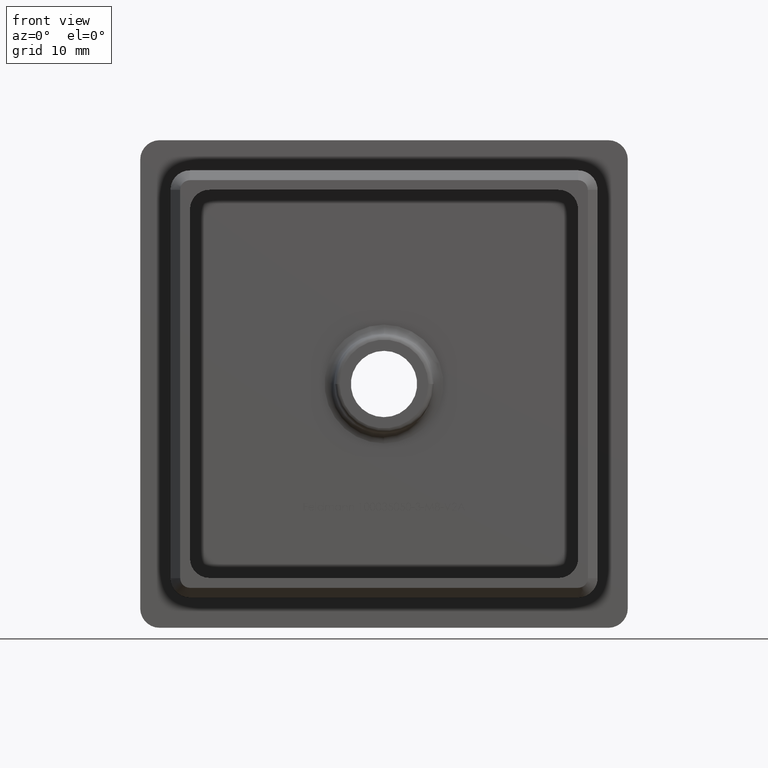
[diagram: clean part render]
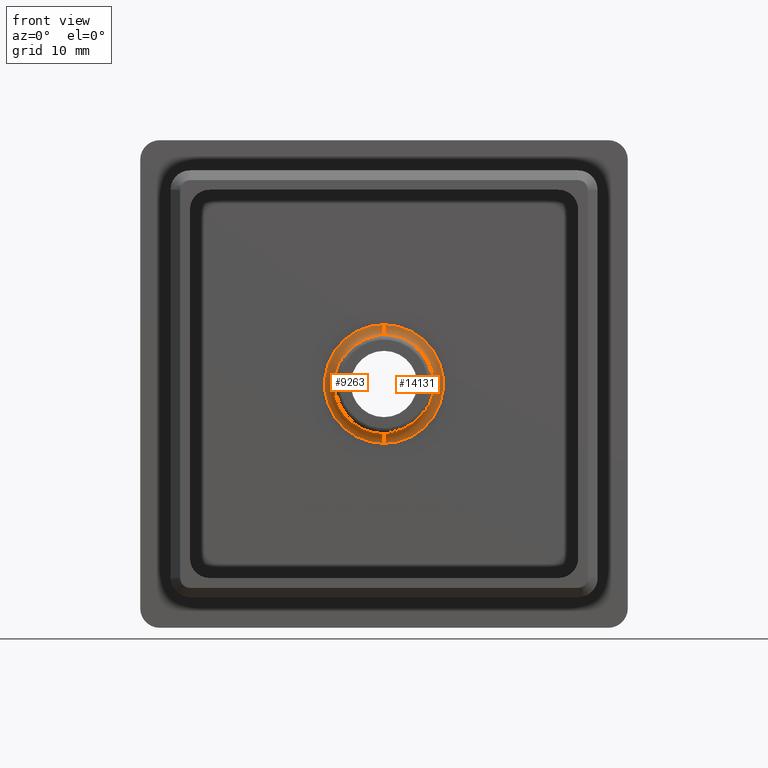
[diagram: same view with one multi-face feature highlighted, each face labeled with its STEP entity id]
A machine part, front view. The highlighted faces form ONE feature: a constant-radius fillet chain: 2 tangent blend faces with common blend radius 1 mm. The faces share edges in the B-rep.
Their STEP definitions:
[1] entity #14131 (Torus):
#20 = DIRECTION ( 'NONE',  ( 0.0000000000000000000, 0.0000000000000000000, 1.000000000000000000 ) ) ;
#593 = AXIS2_PLACEMENT_3D ( 'NONE', #19513, #11595, #13210 ) ;
#667 = CIRCLE ( 'NONE', #11315, 6.091308501069263100 ) ;
#999 = AXIS2_PLACEMENT_3D ( 'NONE', #16143, #19315, #3225 ) ;
#1068 = EDGE_CURVE ( 'NONE', #15279, #2991, #17135, .T. ) ;
#1348 = DIRECTION ( 'NONE',  ( 0.0000000000000000000, 0.0000000000000000000, 1.000000000000000000 ) ) ;
#2236 = DIRECTION ( 'NONE',  ( 0.0000000000000000000, 0.0000000000000000000, 1.000000000000000000 ) ) ;
#2973 = CARTESIAN_POINT ( 'NONE',  ( 1.001573005813146500E-015, -1.000000000000000000, -6.091308501069263100 ) ) ;
#2991 = VERTEX_POINT ( 'NONE', #16200 ) ;
#3225 = DIRECTION ( 'NONE',  ( -1.000000000000000000, -1.276755198502429000E-016, 0.0000000000000000000 ) ) ;
#3283 = AXIS2_PLACEMENT_3D ( 'NONE', #2973, #9285, #19001 ) ;
#3302 = EDGE_LOOP ( 'NONE', ( #9403, #14461, #15768, #19749, #18469 ) ) ;
#3622 = EDGE_CURVE ( 'NONE', #3738, #13591, #10450, .T. ) ;
#3738 = VERTEX_POINT ( 'NONE', #14736 ) ;
#5022 = EDGE_CURVE ( 'NONE', #2991, #3738, #20477, .T. ) ;
#5905 = CIRCLE ( 'NONE', #10934, 1.000000000000000000 ) ;
#7968 = VERTEX_POINT ( 'NONE', #15787 ) ;
#9110 = TOROIDAL_SURFACE ( 'NONE', #16415, 6.091308501069263100, 1.000000000000000000 ) ;
#9285 = DIRECTION ( 'NONE',  ( 1.000000000000000000, -0.0000000000000000000, 1.224646799147353200E-016 ) ) ;
#9403 = ORIENTED_EDGE ( 'NONE', *, *, #1068, .F. ) ;
#9645 = DIRECTION ( 'NONE',  ( 0.0000000000000000000, 1.000000000000000000, 0.0000000000000000000 ) ) ;
#10147 = CARTESIAN_POINT ( 'NONE',  ( 1.001573005813146500E-015, 0.0000000000000000000, -6.091308501069263100 ) ) ;
#10430 = CARTESIAN_POINT ( 'NONE',  ( 2.556028599677928600E-016, -1.000000000000000000, 6.091308501069263100 ) ) ;
#10450 = CIRCLE ( 'NONE', #593, 5.095113802977517800 ) ;
#10509 = EDGE_CURVE ( 'NONE', #7968, #15279, #667, .T. ) ;
#10934 = AXIS2_PLACEMENT_3D ( 'NONE', #10430, #13518, #2236 ) ;
#11041 = CARTESIAN_POINT ( 'NONE',  ( 2.556028599677928600E-016, 0.0000000000000000000, 1.984021111433010100E-016 ) ) ;
#11315 = AXIS2_PLACEMENT_3D ( 'NONE', #11041, #9645, #1348 ) ;
#11595 = DIRECTION ( 'NONE',  ( 1.224646799147353500E-016, -1.000000000000000000, 0.0000000000000000000 ) ) ;
#11793 = EDGE_CURVE ( 'NONE', #7968, #13591, #5905, .T. ) ;
#13210 = DIRECTION ( 'NONE',  ( -1.000000000000000000, -1.276755198502429000E-016, 0.0000000000000000000 ) ) ;
#13518 = DIRECTION ( 'NONE',  ( -1.000000000000000000, 0.0000000000000000000, 0.0000000000000000000 ) ) ;
#13591 = VERTEX_POINT ( 'NONE', #16767 ) ;
#14056 = CARTESIAN_POINT ( 'NONE',  ( 2.556028599677928600E-016, -1.000000000000000000, 1.984021111433010100E-016 ) ) ;
#14131 = ADVANCED_FACE ( 'NONE', ( #17108 ), #9110, .F. ) ;
#14461 = ORIENTED_EDGE ( 'NONE', *, *, #10509, .F. ) ;
#14736 = CARTESIAN_POINT ( 'NONE',  ( 5.095113802977517800, -0.9128442572523479700, 6.239714810107915300E-016 ) ) ;
#15279 = VERTEX_POINT ( 'NONE', #10147 ) ;
#15643 = DIRECTION ( 'NONE',  ( 0.0000000000000000000, 1.000000000000000000, 0.0000000000000000000 ) ) ;
#15768 = ORIENTED_EDGE ( 'NONE', *, *, #11793, .T. ) ;
#15787 = CARTESIAN_POINT ( 'NONE',  ( 2.556028599677928600E-016, 0.0000000000000000000, 6.091308501069263100 ) ) ;
#16143 = CARTESIAN_POINT ( 'NONE',  ( 2.556028599677928600E-016, -0.9128442572523486300, 1.984021111433010100E-016 ) ) ;
#16200 = CARTESIAN_POINT ( 'NONE',  ( 9.405736733958655000E-016, -0.9128442572523486300, -5.095113802977517800 ) ) ;
#16415 = AXIS2_PLACEMENT_3D ( 'NONE', #14056, #15643, #20 ) ;
#16767 = CARTESIAN_POINT ( 'NONE',  ( 2.556028599677929600E-016, -0.9128442572523486300, 5.095113802977517800 ) ) ;
#17108 = FACE_OUTER_BOUND ( 'NONE', #3302, .T. ) ;
#17135 = CIRCLE ( 'NONE', #3283, 1.000000000000000000 ) ;
#18469 = ORIENTED_EDGE ( 'NONE', *, *, #5022, .F. ) ;
#19001 = DIRECTION ( 'NONE',  ( 1.224646799147352500E-016, 0.0000000000000000000, -1.000000000000000000 ) ) ;
#19315 = DIRECTION ( 'NONE',  ( 1.224646799147353500E-016, -1.000000000000000000, 0.0000000000000000000 ) ) ;
#19513 = CARTESIAN_POINT ( 'NONE',  ( 2.556028599677928600E-016, -0.9128442572523486300, 1.984021111433010100E-016 ) ) ;
#19749 = ORIENTED_EDGE ( 'NONE', *, *, #3622, .F. ) ;
#20477 = CIRCLE ( 'NONE', #999, 5.095113802977517800 ) ;
[2] entity #9263 (Torus):
#525 = DIRECTION ( 'NONE',  ( 0.0000000000000000000, 0.0000000000000000000, 1.000000000000000000 ) ) ;
#848 = CARTESIAN_POINT ( 'NONE',  ( 2.556028599677928600E-016, -0.9128442572523486300, 1.984021111433010100E-016 ) ) ;
#1049 = DIRECTION ( 'NONE',  ( 1.224646799147353500E-016, -1.000000000000000000, 0.0000000000000000000 ) ) ;
#1068 = EDGE_CURVE ( 'NONE', #15279, #2991, #17135, .T. ) ;
#2206 = AXIS2_PLACEMENT_3D ( 'NONE', #848, #16874, #10528 ) ;
#2236 = DIRECTION ( 'NONE',  ( 0.0000000000000000000, 0.0000000000000000000, 1.000000000000000000 ) ) ;
#2856 = AXIS2_PLACEMENT_3D ( 'NONE', #3975, #10134, #525 ) ;
#2973 = CARTESIAN_POINT ( 'NONE',  ( 1.001573005813146500E-015, -1.000000000000000000, -6.091308501069263100 ) ) ;
#2991 = VERTEX_POINT ( 'NONE', #16200 ) ;
#3283 = AXIS2_PLACEMENT_3D ( 'NONE', #2973, #9285, #19001 ) ;
#3955 = TOROIDAL_SURFACE ( 'NONE', #2856, 6.091308501069263100, 1.000000000000000000 ) ;
#3975 = CARTESIAN_POINT ( 'NONE',  ( 2.556028599677928600E-016, -1.000000000000000000, 1.984021111433010100E-016 ) ) ;
#5568 = ORIENTED_EDGE ( 'NONE', *, *, #16844, .F. ) ;
#5905 = CIRCLE ( 'NONE', #10934, 1.000000000000000000 ) ;
#6907 = CIRCLE ( 'NONE', #2206, 5.095113802977517800 ) ;
#7013 = EDGE_CURVE ( 'NONE', #11648, #2991, #14264, .T. ) ;
#7115 = ORIENTED_EDGE ( 'NONE', *, *, #1068, .T. ) ;
#7731 = FACE_OUTER_BOUND ( 'NONE', #18932, .T. ) ;
#7968 = VERTEX_POINT ( 'NONE', #15787 ) ;
#9263 = ADVANCED_FACE ( 'NONE', ( #7731 ), #3955, .F. ) ;
#9285 = DIRECTION ( 'NONE',  ( 1.000000000000000000, -0.0000000000000000000, 1.224646799147353200E-016 ) ) ;
#10134 = DIRECTION ( 'NONE',  ( 0.0000000000000000000, 1.000000000000000000, 0.0000000000000000000 ) ) ;
#10147 = CARTESIAN_POINT ( 'NONE',  ( 1.001573005813146500E-015, 0.0000000000000000000, -6.091308501069263100 ) ) ;
#10430 = CARTESIAN_POINT ( 'NONE',  ( 2.556028599677928600E-016, -1.000000000000000000, 6.091308501069263100 ) ) ;
#10528 = DIRECTION ( 'NONE',  ( -1.000000000000000000, -1.276755198502429000E-016, 0.0000000000000000000 ) ) ;
#10621 = ORIENTED_EDGE ( 'NONE', *, *, #11793, .F. ) ;
#10934 = AXIS2_PLACEMENT_3D ( 'NONE', #10430, #13518, #2236 ) ;
#11648 = VERTEX_POINT ( 'NONE', #13086 ) ;
#11793 = EDGE_CURVE ( 'NONE', #7968, #13591, #5905, .T. ) ;
#11899 = DIRECTION ( 'NONE',  ( 0.0000000000000000000, 1.000000000000000000, 0.0000000000000000000 ) ) ;
#12355 = EDGE_CURVE ( 'NONE', #13591, #11648, #6907, .T. ) ;
#12454 = AXIS2_PLACEMENT_3D ( 'NONE', #18056, #11899, #13446 ) ;
#13086 = CARTESIAN_POINT ( 'NONE',  ( -5.095113802977517800, -0.9128442572523493000, 0.0000000000000000000 ) ) ;
#13446 = DIRECTION ( 'NONE',  ( 0.0000000000000000000, 0.0000000000000000000, 1.000000000000000000 ) ) ;
#13518 = DIRECTION ( 'NONE',  ( -1.000000000000000000, 0.0000000000000000000, 0.0000000000000000000 ) ) ;
#13591 = VERTEX_POINT ( 'NONE', #16767 ) ;
#13956 = CARTESIAN_POINT ( 'NONE',  ( 2.556028599677928600E-016, -0.9128442572523486300, 1.984021111433010100E-016 ) ) ;
#14264 = CIRCLE ( 'NONE', #16975, 5.095113802977517800 ) ;
#15279 = VERTEX_POINT ( 'NONE', #10147 ) ;
#15787 = CARTESIAN_POINT ( 'NONE',  ( 2.556028599677928600E-016, 0.0000000000000000000, 6.091308501069263100 ) ) ;
#16200 = CARTESIAN_POINT ( 'NONE',  ( 9.405736733958655000E-016, -0.9128442572523486300, -5.095113802977517800 ) ) ;
#16767 = CARTESIAN_POINT ( 'NONE',  ( 2.556028599677929600E-016, -0.9128442572523486300, 5.095113802977517800 ) ) ;
#16844 = EDGE_CURVE ( 'NONE', #15279, #7968, #19437, .T. ) ;
#16874 = DIRECTION ( 'NONE',  ( 1.224646799147353500E-016, -1.000000000000000000, 0.0000000000000000000 ) ) ;
#16975 = AXIS2_PLACEMENT_3D ( 'NONE', #13956, #1049, #20268 ) ;
#17135 = CIRCLE ( 'NONE', #3283, 1.000000000000000000 ) ;
#18056 = CARTESIAN_POINT ( 'NONE',  ( 2.556028599677928600E-016, 0.0000000000000000000, 1.984021111433010100E-016 ) ) ;
#18512 = ORIENTED_EDGE ( 'NONE', *, *, #12355, .F. ) ;
#18704 = ORIENTED_EDGE ( 'NONE', *, *, #7013, .F. ) ;
#18932 = EDGE_LOOP ( 'NONE', ( #5568, #7115, #18704, #18512, #10621 ) ) ;
#19001 = DIRECTION ( 'NONE',  ( 1.224646799147352500E-016, 0.0000000000000000000, -1.000000000000000000 ) ) ;
#19437 = CIRCLE ( 'NONE', #12454, 6.091308501069263100 ) ;
#20268 = DIRECTION ( 'NONE',  ( -1.000000000000000000, -1.276755198502429000E-016, 0.0000000000000000000 ) ) ;